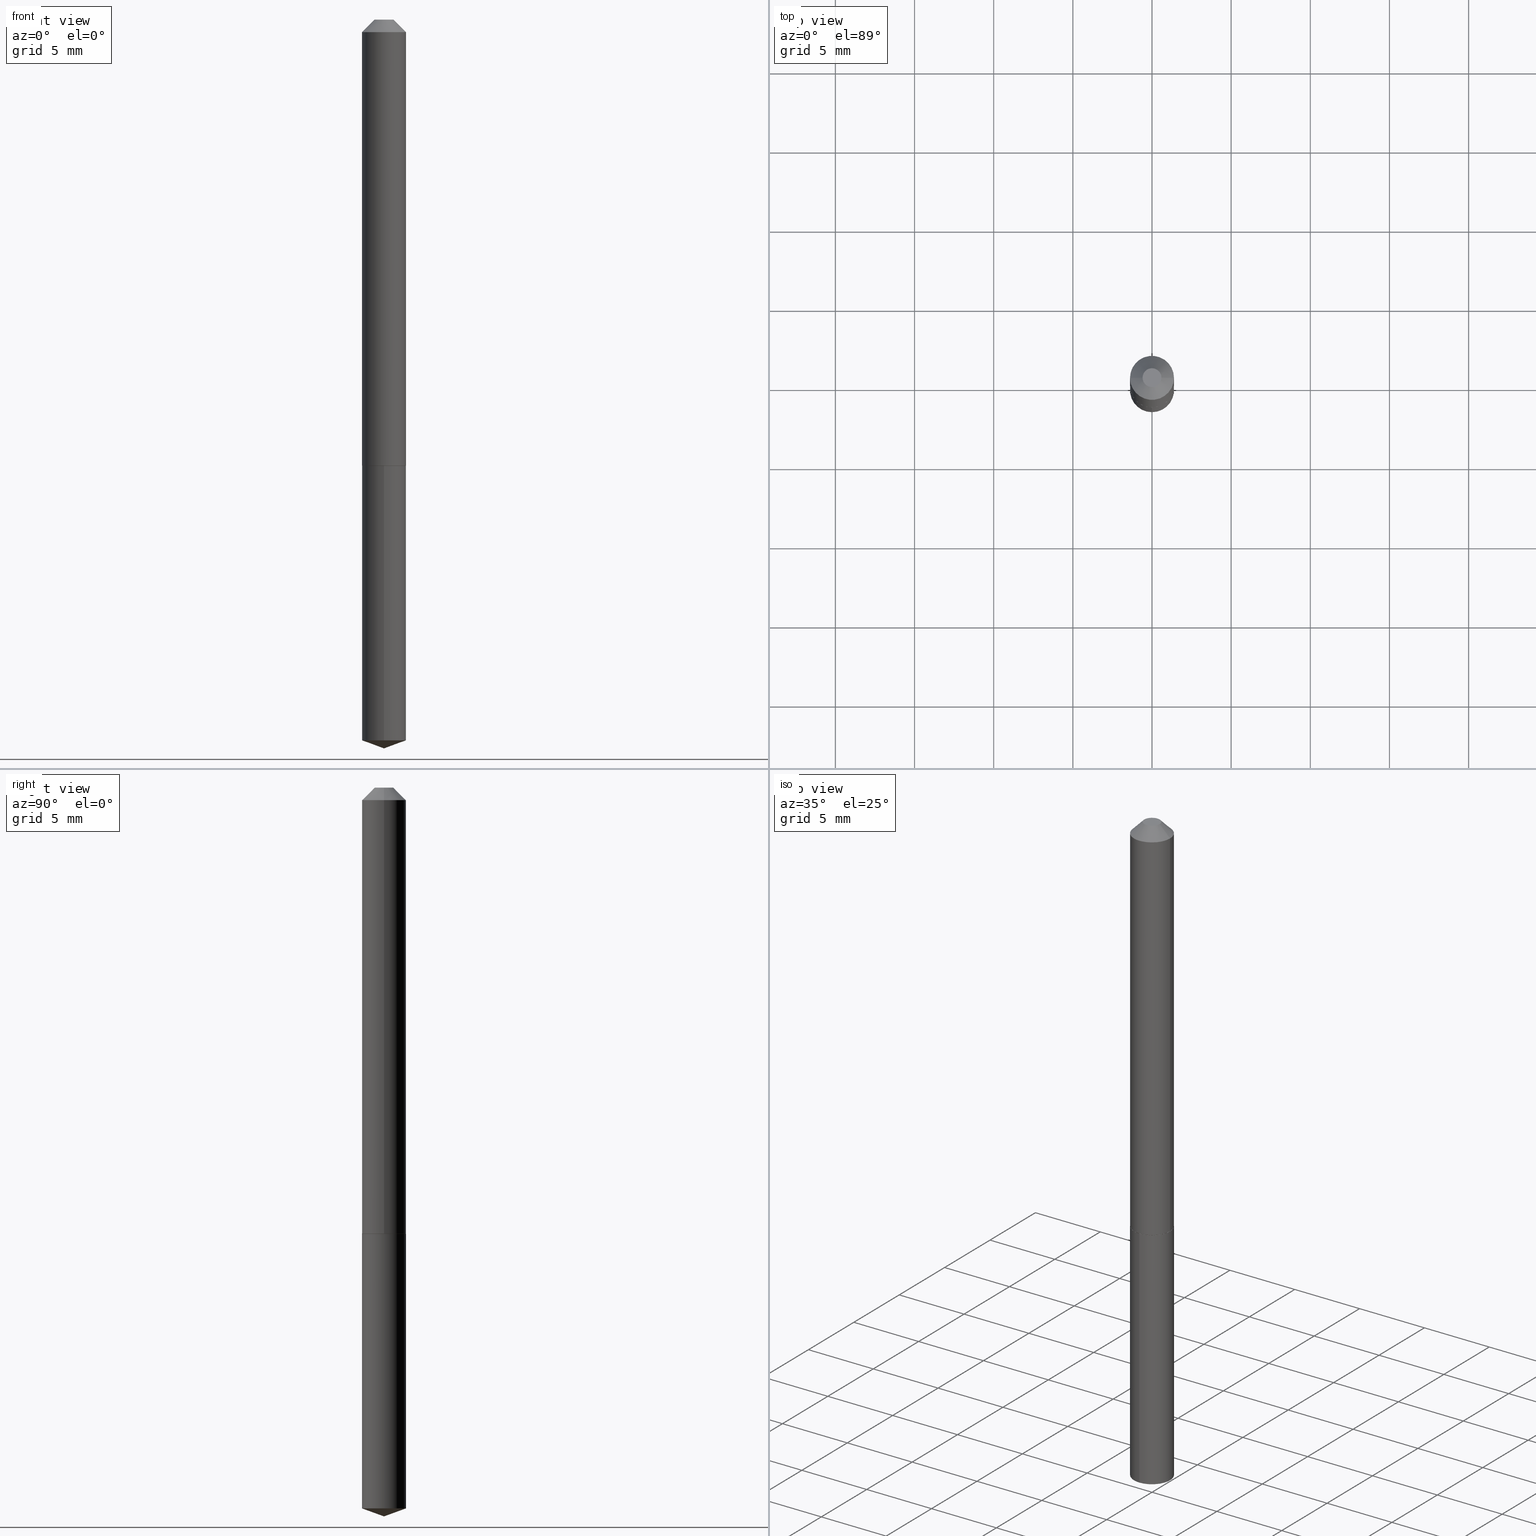
[diagram: canonical four-view strip — front | top / right | iso, engineering-drawing reading convention]
A machine part, canonical four-view strip (front | top / right | iso — engineering-drawing reading convention). The complete STEP part file that produces these views, byte-faithful:
ISO-10303-21;
HEADER;
FILE_DESCRIPTION (( 'STEP AP203' ),
    '1' );
FILE_NAME ('56139.STEP',
    '2024-04-22T20:35:35',
    ( '' ),
    ( '' ),
    'SwSTEP 2.0',
    'SolidWorks 2023',
    '' );
FILE_SCHEMA (( 'CONFIG_CONTROL_DESIGN' ));
ENDSEC;

DATA;
#1 = APPROVAL_PERSON_ORGANIZATION ( #361, #282, #11 ) ;
#2 = ORIENTED_EDGE ( 'NONE', *, *, #380, .T. ) ;
#3 = ADVANCED_FACE ( 'NONE', ( #364 ), #13, .T. ) ;
#4 = DIRECTION ( 'NONE',  ( 1.000000000000000000, 0.000000000000000000, 0.000000000000000000 ) ) ;
#5 = APPLICATION_PROTOCOL_DEFINITION ( 'international standard', 'config_control_design', 1994, #215 ) ;
#6 = ORIENTED_EDGE ( 'NONE', *, *, #310, .F. ) ;
#7 = UNCERTAINTY_MEASURE_WITH_UNIT (LENGTH_MEASURE( 1.000000000000000082E-05 ), #276, 'distance_accuracy_value', 'NONE');
#8 = DATE_TIME_ROLE ( 'creation_date' ) ;
#9 = VERTEX_POINT ( 'NONE', #244 ) ;
#10 = EDGE_CURVE ( 'NONE', #53, #162, #381, .T. ) ;
#11 = APPROVAL_ROLE ( '' ) ;
#12 = DIRECTION ( 'NONE',  ( 1.000000000000000000, -6.982962677686269866E-15, 0.000000000000000000 ) ) ;
#13 = CONICAL_SURFACE ( 'NONE', #343, 0.05470000000000000556, 0.7853981633974450594 ) ;
#14 = PRODUCT ( '56139', '56139', '', ( #336 ) ) ;
#15 = DIRECTION ( 'NONE',  ( -2.445468806185136597E-29, 3.491481338843145583E-15, 1.000000000000000000 ) ) ;
#16 = CARTESIAN_POINT ( 'NONE',  ( 2.713003093581790888E-29, -3.873449397312585946E-15, -1.109400000000000164 ) ) ;
#17 = CC_DESIGN_DATE_AND_TIME_ASSIGNMENT ( #284, #19, ( #177 ) ) ;
#18 = EDGE_LOOP ( 'NONE', ( #322, #89, #185, #248 ) ) ;
#19 = DATE_TIME_ROLE ( 'classification_date' ) ;
#20 = CARTESIAN_POINT ( 'NONE',  ( 4.433028225724176768E-29, -6.327427758808334844E-15, -1.812500000000000222 ) ) ;
#21 = ORIENTED_EDGE ( 'NONE', *, *, #154, .F. ) ;
#22 = VECTOR ( 'NONE', #57, 39.37007874015748143 ) ;
#23 = CC_DESIGN_SECURITY_CLASSIFICATION ( #177, ( #286 ) ) ;
#24 = DIRECTION ( 'NONE',  ( 1.000000000000000000, -6.982962677686266711E-15, 4.876176775795936353E-29 ) ) ;
#25 = CARTESIAN_POINT ( 'NONE',  ( 2.711780359178698087E-29, -3.871703656643164443E-15, -1.108899999999999997 ) ) ;
#26 = ORIENTED_EDGE ( 'NONE', *, *, #359, .T. ) ;
#27 = CARTESIAN_POINT ( 'NONE',  ( 7.606645392260027928E-30, -6.669309327359751594E-15, -1.109400000000000164 ) ) ;
#28 = CONICAL_SURFACE ( 'NONE', #308, 0.05470000000000013046, 0.7853981633972689780 ) ;
#29 = CC_DESIGN_APPROVAL ( #372, ( #177 ) ) ;
#30 = FACE_OUTER_BOUND ( 'NONE', #318, .T. ) ;
#31 = DIRECTION ( 'NONE',  ( 1.000000000000000000, -6.982962677686269866E-15, 0.000000000000000000 ) ) ;
#32 = MANIFOLD_SOLID_BREP ( 'Body-Move/Copy2[1]', #285 ) ;
#33 = AXIS2_PLACEMENT_3D ( 'NONE', #52, #172, #294 ) ;
#34 = CARTESIAN_POINT ( 'NONE',  ( 7.642090019328602662E-31, -1.091087918388490267E-16, -0.03125000000000020817 ) ) ;
#35 = EDGE_LOOP ( 'NONE', ( #6, #222, #376 ) ) ;
#36 = PERSON_AND_ORGANIZATION ( #388, #300 ) ;
#37 = EDGE_LOOP ( 'NONE', ( #121, #288, #152, #115 ) ) ;
#38 = CALENDAR_DATE ( 2024, 22, 4 ) ;
#39 = DIRECTION ( 'NONE',  ( -6.982962677686265922E-15, -1.000000000000000000, 2.497118824190368439E-15 ) ) ;
#40 = DIRECTION ( 'NONE',  ( -0.7071067811864205632, 7.493145998869895043E-15, 0.7071067811866742492 ) ) ;
#41 = ORIENTED_EDGE ( 'NONE', *, *, #301, .F. ) ;
#42 = COORDINATED_UNIVERSAL_TIME_OFFSET ( 5, 0, .BEHIND. ) ;
#43 = CARTESIAN_POINT ( 'NONE',  ( 7.642090019328602662E-31, -1.091087918388490267E-16, -0.03125000000000020817 ) ) ;
#44 = VECTOR ( 'NONE', #303, 39.37007874015748143 ) ;
#45 = PLANE ( 'NONE',  #261 ) ;
#46 = CARTESIAN_POINT ( 'NONE',  ( 3.886668764608186723E-16, 0.05469999999999611284, -1.109400000000000164 ) ) ;
#47 = FACE_OUTER_BOUND ( 'NONE', #202, .T. ) ;
#48 = DIRECTION ( 'NONE',  ( -6.982962677686265922E-15, -1.000000000000000000, 2.497118824190368439E-15 ) ) ;
#49 = CARTESIAN_POINT ( 'NONE',  ( -1.167985862904637270E-47, 1.667574263899819573E-33, 4.776122516674677910E-19 ) ) ;
#50 = VERTEX_POINT ( 'NONE', #366 ) ;
#51 = AXIS2_PLACEMENT_3D ( 'NONE', #126, #306, #216 ) ;
#52 = CARTESIAN_POINT ( 'NONE',  ( 2.713003093581790888E-29, -3.873449397312586735E-15, -1.109400000000000164 ) ) ;
#53 = VERTEX_POINT ( 'NONE', #356 ) ;
#54 = AXIS2_PLACEMENT_3D ( 'NONE', #320, #384, #31 ) ;
#55 = DIRECTION ( 'NONE',  ( -2.445468806185136597E-29, 3.491481338843145583E-15, 1.000000000000000000 ) ) ;
#56 = DIRECTION ( 'NONE',  ( -6.982962677686265922E-15, -1.000000000000000000, 4.994237648380736877E-15 ) ) ;
#57 = DIRECTION ( 'NONE',  ( -2.445468806185136877E-29, 3.491481338843145188E-15, 1.000000000000000000 ) ) ;
#58 = CARTESIAN_POINT ( 'NONE',  ( 0.02344999999999999862, -3.226283551823471496E-16, 9.552245033366354078E-19 ) ) ;
#59 = CONICAL_SURFACE ( 'NONE', #88, 108.1684023407339197, 1.221730476396033049 ) ;
#60 = ORIENTED_EDGE ( 'NONE', *, *, #72, .T. ) ;
#61 = ORIENTED_EDGE ( 'NONE', *, *, #133, .T. ) ;
#62 = PERSON_AND_ORGANIZATION ( #388, #300 ) ;
#63 = DIRECTION ( 'NONE',  ( -1.000000000000000000, 6.982962677686266711E-15, 0.000000000000000000 ) ) ;
#64 = EDGE_CURVE ( 'NONE', #337, #162, #220, .T. ) ;
#65 = APPROVAL_STATUS ( 'not_yet_approved' ) ;
#66 = CARTESIAN_POINT ( 'NONE',  ( -0.05420000000000013696, -3.485686007356499471E-15, -1.109400000000000164 ) ) ;
#67 = DIRECTION ( 'NONE',  ( -2.445468806185136597E-29, 3.491481338843145583E-15, 1.000000000000000000 ) ) ;
#68 = ORIENTED_EDGE ( 'NONE', *, *, #359, .F. ) ;
#69 = SHAPE_DEFINITION_REPRESENTATION ( #344, #207 ) ;
#70 = ORIENTED_EDGE ( 'NONE', *, *, #310, .T. ) ;
#71 = PERSON_AND_ORGANIZATION ( #388, #300 ) ;
#72 = EDGE_CURVE ( 'NONE', #390, #362, #357, .T. ) ;
#73 = AXIS2_PLACEMENT_3D ( 'NONE', #95, #360, #12 ) ;
#74 = DIRECTION ( 'NONE',  ( 6.982962677686265922E-15, 1.000000000000000000, -3.490994625549426148E-15 ) ) ;
#75 = CARTESIAN_POINT ( 'NONE',  ( 4.432274121998487343E-29, -6.328507678264440123E-15, -1.812500000000000222 ) ) ;
#76 = CARTESIAN_POINT ( 'NONE',  ( 4.383957148700584574E-29, -6.258464906733312239E-15, -1.792590828185639085 ) ) ;
#77 = CARTESIAN_POINT ( 'NONE',  ( -3.819680584693948069E-16, -0.05470000000000622975, -1.792590828185638641 ) ) ;
#78 = EDGE_LOOP ( 'NONE', ( #374, #211, #198, #189 ) ) ;
#79 = CC_DESIGN_PERSON_AND_ORGANIZATION_ASSIGNMENT ( #71, #96, ( #177 ) ) ;
#80 = CARTESIAN_POINT ( 'NONE',  ( 2.713003093581790888E-29, -3.873449397312585946E-15, -1.109400000000000164 ) ) ;
#81 = AXIS2_PLACEMENT_3D ( 'NONE', #168, #103, #348 ) ;
#82 = CARTESIAN_POINT ( 'NONE',  ( 2.711780359178698087E-29, -3.871703656643164443E-15, -1.108899999999999997 ) ) ;
#83 = DIRECTION ( 'NONE',  ( 1.000000000000000000, -6.982962677686266711E-15, 4.876176775795936353E-29 ) ) ;
#84 = CC_DESIGN_DATE_AND_TIME_ASSIGNMENT ( #156, #8, ( #153 ) ) ;
#85 = EDGE_CURVE ( 'NONE', #50, #346, #249, .T. ) ;
#86 = ORIENTED_EDGE ( 'NONE', *, *, #10, .T. ) ;
#87 = CARTESIAN_POINT ( 'NONE',  ( -0.02344999999999999862, 2.183048707111663922E-16, 9.552245033335997570E-19 ) ) ;
#88 = AXIS2_PLACEMENT_3D ( 'NONE', #265, #295, #140 ) ;
#89 = ORIENTED_EDGE ( 'NONE', *, *, #64, .T. ) ;
#90 = CALENDAR_DATE ( 2024, 22, 4 ) ;
#91 = LINE ( 'NONE', #128, #192 ) ;
#92 = EDGE_CURVE ( 'NONE', #94, #50, #297, .T. ) ;
#93 = DIRECTION ( 'NONE',  ( 0.7071067811864205632, -2.468850131080928224E-15, 0.7071067811866742492 ) ) ;
#94 = VERTEX_POINT ( 'NONE', #66 ) ;
#95 = CARTESIAN_POINT ( 'NONE',  ( 2.711780359178698087E-29, -3.871703656643164443E-15, -1.108899999999999997 ) ) ;
#96 = PERSON_AND_ORGANIZATION_ROLE ( 'classification_officer' ) ;
#97 = ORIENTED_EDGE ( 'NONE', *, *, #154, .T. ) ;
#98 = APPROVAL_ROLE ( '' ) ;
#99 = DIRECTION ( 'NONE',  ( 1.000000000000000000, -6.982962677686266711E-15, 0.000000000000000000 ) ) ;
#100 = FACE_OUTER_BOUND ( 'NONE', #37, .T. ) ;
#101 = EDGE_CURVE ( 'NONE', #50, #332, #91, .T. ) ;
#102 = ORIENTED_EDGE ( 'NONE', *, *, #206, .F. ) ;
#103 = DIRECTION ( 'NONE',  ( -2.445468806185136597E-29, 3.491481338843145583E-15, 1.000000000000000000 ) ) ;
#104 = CIRCLE ( 'NONE', #81, 0.05420000000000013696 ) ;
#105 = DIRECTION ( 'NONE',  ( -2.445808676261614440E-29, 3.490994625549426148E-15, 1.000000000000000000 ) ) ;
#106 = ORIENTED_EDGE ( 'NONE', *, *, #234, .F. ) ;
#107 = EDGE_CURVE ( 'NONE', #125, #275, #277, .T. ) ;
#108 = CYLINDRICAL_SURFACE ( 'NONE', #325, 0.05469999999999999862 ) ;
#109 = VECTOR ( 'NONE', #293, 39.37007874015748854 ) ;
#110 = CARTESIAN_POINT ( 'NONE',  ( 0.05470000000000000556, -4.843780323169518806E-16, -0.03125000000000020817 ) ) ;
#111 = VECTOR ( 'NONE', #40, 39.37007874015748854 ) ;
#112 = DIRECTION ( 'NONE',  ( 2.438088387897960049E-29, -3.491481338843145188E-15, -1.000000000000000000 ) ) ;
#113 = ADVANCED_FACE ( 'NONE', ( #47 ), #155, .T. ) ;
#114 = FACE_OUTER_BOUND ( 'NONE', #151, .T. ) ;
#115 = ORIENTED_EDGE ( 'NONE', *, *, #369, .F. ) ;
#116 = AXIS2_PLACEMENT_3D ( 'NONE', #34, #67, #181 ) ;
#117 = CARTESIAN_POINT ( 'NONE',  ( 0.000000000000000000, 0.000000000000000000, 0.000000000000000000 ) ) ;
#118 = CIRCLE ( 'NONE', #54, 0.05470000000000013046 ) ;
#119 = ORIENTED_EDGE ( 'NONE', *, *, #101, .T. ) ;
#120 = APPROVAL_STATUS ( 'not_yet_approved' ) ;
#121 = ORIENTED_EDGE ( 'NONE', *, *, #101, .F. ) ;
#122 = LINE ( 'NONE', #298, #345 ) ;
#123 = CARTESIAN_POINT ( 'NONE',  ( 7.642090019328602662E-31, -1.091087918388490267E-16, -0.03125000000000020817 ) ) ;
#124 = COORDINATED_UNIVERSAL_TIME_OFFSET ( 5, 0, .BEHIND. ) ;
#125 = VERTEX_POINT ( 'NONE', #20 ) ;
#126 = CARTESIAN_POINT ( 'NONE',  ( -2.335971725809274539E-47, 3.335148527799639146E-33, 9.552245033349355820E-19 ) ) ;
#127 = VECTOR ( 'NONE', #165, 39.37007874015748143 ) ;
#128 = CARTESIAN_POINT ( 'NONE',  ( -0.05470000000000006801, 3.886668764607752849E-16, -2.690657494369436511E-30 ) ) ;
#129 = EDGE_CURVE ( 'NONE', #362, #332, #257, .T. ) ;
#130 = PERSON_AND_ORGANIZATION_ROLE ( 'creator' ) ;
#131 = AXIS2_PLACEMENT_3D ( 'NONE', #27, #201, #351 ) ;
#132 = APPROVAL_DATE_TIME ( #190, #282 ) ;
#133 = EDGE_CURVE ( 'NONE', #9, #332, #371, .T. ) ;
#134 = DIRECTION ( 'NONE',  ( -0.7071067811865452413, 2.468850131082233000E-15, -0.7071067811865497932 ) ) ;
#135 = AXIS2_PLACEMENT_3D ( 'NONE', #169, #203, #389 ) ;
#136 = PERSON_AND_ORGANIZATION ( #388, #300 ) ;
#137 = LOCAL_TIME ( 16, 35, 35.00000000000000000, #158 ) ;
#138 = EDGE_LOOP ( 'NONE', ( #271, #68, #217, #350 ) ) ;
#139 = AXIS2_PLACEMENT_3D ( 'NONE', #354, #323, #24 ) ;
#140 = DIRECTION ( 'NONE',  ( -6.982962677686269077E-15, -1.000000000000000000, 3.475157955500705620E-15 ) ) ;
#141 = AXIS2_PLACEMENT_3D ( 'NONE', #242, #281, #39 ) ;
#142 = ADVANCED_FACE ( 'NONE', ( #378 ), #45, .F. ) ;
#143 = FACE_OUTER_BOUND ( 'NONE', #78, .T. ) ;
#144 = FACE_OUTER_BOUND ( 'NONE', #173, .T. ) ;
#145 = LOCAL_TIME ( 16, 35, 35.00000000000000000, #124 ) ;
#146 = FACE_OUTER_BOUND ( 'NONE', #204, .T. ) ;
#147 = ADVANCED_FACE ( 'NONE', ( #196 ), #315, .T. ) ;
#148 = CC_DESIGN_PERSON_AND_ORGANIZATION_ASSIGNMENT ( #36, #245, ( #14 ) ) ;
#149 = LINE ( 'NONE', #110, #314 ) ;
#150 = DIRECTION ( 'NONE',  ( -2.445808676261614440E-29, 3.490994625549426148E-15, 1.000000000000000000 ) ) ;
#151 = EDGE_LOOP ( 'NONE', ( #97, #229, #224, #183 ) ) ;
#152 = ORIENTED_EDGE ( 'NONE', *, *, #301, .T. ) ;
#153 = PRODUCT_DEFINITION ( 'UNKNOWN', '', #286, #171 ) ;
#154 = EDGE_CURVE ( 'NONE', #307, #94, #104, .T. ) ;
#155 = CONICAL_SURFACE ( 'NONE', #291, 0.05470000000000000556, 0.7853981633974450594 ) ;
#156 = DATE_AND_TIME ( #38, #385 ) ;
#157 = EDGE_LOOP ( 'NONE', ( #272, #70, #102 ) ) ;
#158 = COORDINATED_UNIVERSAL_TIME_OFFSET ( 5, 0, .BEHIND. ) ;
#159 = DIRECTION ( 'NONE',  ( -2.445468806185136877E-29, 3.491481338843145188E-15, 1.000000000000000000 ) ) ;
#160 = APPROVAL_PERSON_ORGANIZATION ( #136, #372, #98 ) ;
#161 = CC_DESIGN_PERSON_AND_ORGANIZATION_ASSIGNMENT ( #62, #184, ( #153 ) ) ;
#162 = VERTEX_POINT ( 'NONE', #46 ) ;
#163 = CONICAL_SURFACE ( 'NONE', #179, 0.05470000000000013046, 0.7853981633972689780 ) ;
#164 = DIRECTION ( 'NONE',  ( 2.445808676261613880E-29, -3.490994625549426148E-15, -1.000000000000000000 ) ) ;
#165 = DIRECTION ( 'NONE',  ( -6.561838499445207162E-15, -0.9396926207859079838, 0.3420201433256698231 ) ) ;
#166 = AXIS2_PLACEMENT_3D ( 'NONE', #117, #182, #4 ) ;
#167 = AXIS2_PLACEMENT_3D ( 'NONE', #43, #15, #99 ) ;
#168 = CARTESIAN_POINT ( 'NONE',  ( 2.713003093581790888E-29, -3.873449397312586735E-15, -1.109400000000000164 ) ) ;
#169 = CARTESIAN_POINT ( 'NONE',  ( 2.713003093581790888E-29, -3.873449397312585946E-15, -1.109400000000000164 ) ) ;
#170 = AXIS2_PLACEMENT_3D ( 'NONE', #76, #324, #56 ) ;
#171 = DESIGN_CONTEXT ( 'detailed design', #255, 'design' ) ;
#172 = DIRECTION ( 'NONE',  ( -2.445468806185136597E-29, 3.491481338843145583E-15, 1.000000000000000000 ) ) ;
#173 = EDGE_LOOP ( 'NONE', ( #341, #119, #292, #41 ) ) ;
#174 = LINE ( 'NONE', #178, #109 ) ;
#175 = ADVANCED_FACE ( 'NONE', ( #100 ), #227, .T. ) ;
#176 = CARTESIAN_POINT ( 'NONE',  ( -0.05470000000000000556, -1.601739347780230402E-15, -0.03125000000000020817 ) ) ;
#177 = SECURITY_CLASSIFICATION ( '', '', #191 ) ;
#178 = CARTESIAN_POINT ( 'NONE',  ( 4.433034838323703138E-29, -6.327427758808334844E-15, -1.812500000000000222 ) ) ;
#179 = AXIS2_PLACEMENT_3D ( 'NONE', #25, #55, #268 ) ;
#180 = CIRCLE ( 'NONE', #135, 0.05469999999999999862 ) ;
#181 = DIRECTION ( 'NONE',  ( 1.000000000000000000, -6.982962677686266711E-15, 0.000000000000000000 ) ) ;
#182 = DIRECTION ( 'NONE',  ( 0.000000000000000000, 0.000000000000000000, 1.000000000000000000 ) ) ;
#183 = ORIENTED_EDGE ( 'NONE', *, *, #353, .F. ) ;
#184 = PERSON_AND_ORGANIZATION_ROLE ( 'creator' ) ;
#185 = ORIENTED_EDGE ( 'NONE', *, *, #10, .F. ) ;
#186 = LENGTH_MEASURE_WITH_UNIT ( LENGTH_MEASURE( 0.02539999999999999897 ), #213 );
#187 = ORIENTED_EDGE ( 'NONE', *, *, #193, .F. ) ;
#188 =( NAMED_UNIT ( * ) SI_UNIT ( $, .STERADIAN. ) SOLID_ANGLE_UNIT ( ) );
#189 = ORIENTED_EDGE ( 'NONE', *, *, #85, .F. ) ;
#190 = DATE_AND_TIME ( #247, #145 ) ;
#191 = SECURITY_CLASSIFICATION_LEVEL ( 'unclassified' ) ;
#192 = VECTOR ( 'NONE', #159, 39.37007874015748143 ) ;
#193 = EDGE_CURVE ( 'NONE', #162, #53, #180, .T. ) ;
#194 = CARTESIAN_POINT ( 'NONE',  ( 0.000000000000000000, 0.000000000000000000, 0.000000000000000000 ) ) ;
#195 = CALENDAR_DATE ( 2024, 22, 4 ) ;
#196 = FACE_OUTER_BOUND ( 'NONE', #18, .T. ) ;
#197 = LOCAL_TIME ( 16, 35, 35.00000000000000000, #309 ) ;
#198 = ORIENTED_EDGE ( 'NONE', *, *, #353, .T. ) ;
#199 = ADVANCED_FACE ( 'NONE', ( #264 ), #59, .T. ) ;
#200 = DIMENSIONAL_EXPONENTS ( 1.000000000000000000, 0.000000000000000000, 0.000000000000000000, 0.000000000000000000, 0.000000000000000000, 0.000000000000000000, 0.000000000000000000 ) ;
#201 = DIRECTION ( 'NONE',  ( -2.438088387897960049E-29, 3.491481338843145188E-15, 1.000000000000000000 ) ) ;
#202 = EDGE_LOOP ( 'NONE', ( #299, #383, #61, #231 ) ) ;
#203 = DIRECTION ( 'NONE',  ( -2.445808676261614440E-29, 3.490994625549426148E-15, 1.000000000000000000 ) ) ;
#204 = EDGE_LOOP ( 'NONE', ( #21, #106 ) ) ;
#205 = CARTESIAN_POINT ( 'NONE',  ( 0.05420000000000013696, -4.251925974443182908E-15, -1.109400000000000164 ) ) ;
#206 = EDGE_CURVE ( 'NONE', #275, #337, #230, .T. ) ;
#207 = ADVANCED_BREP_SHAPE_REPRESENTATION ( '56139', ( #32, #290, #166 ), #218 ) ;
#208 = DIRECTION ( 'NONE',  ( 1.000000000000000000, -6.982962677686269866E-15, 0.000000000000000000 ) ) ;
#209 = FACE_OUTER_BOUND ( 'NONE', #355, .T. ) ;
#210 = CARTESIAN_POINT ( 'NONE',  ( 0.05470000000000013046, -4.253671715112603623E-15, -1.108899999999999997 ) ) ;
#211 = ORIENTED_EDGE ( 'NONE', *, *, #234, .T. ) ;
#212 = CLOSED_SHELL ( 'NONE', ( #113, #269, #321, #221, #274, #175, #3, #263 ) ) ;
#213 =( LENGTH_UNIT ( ) NAMED_UNIT ( * ) SI_UNIT ( $, .METRE. ) );
#214 = CARTESIAN_POINT ( 'NONE',  ( 3.886668764608018597E-16, 0.05469999999999612672, -1.109400000000000164 ) ) ;
#215 = APPLICATION_CONTEXT ( 'configuration controlled 3d designs of mechanical parts and assemblies' ) ;
#216 = DIRECTION ( 'NONE',  ( 1.000000000000000000, -6.982962677686266711E-15, 4.876421767504995250E-29 ) ) ;
#217 = ORIENTED_EDGE ( 'NONE', *, *, #129, .T. ) ;
#218 =( GEOMETRIC_REPRESENTATION_CONTEXT ( 3 ) GLOBAL_UNCERTAINTY_ASSIGNED_CONTEXT ( ( #7 ) ) GLOBAL_UNIT_ASSIGNED_CONTEXT ( ( #276, #270, #188 ) ) REPRESENTATION_CONTEXT ( 'NONE', 'WORKASPACE' ) );
#219 = APPLICATION_PROTOCOL_DEFINITION ( 'international standard', 'config_control_design', 1994, #255 ) ;
#220 = LINE ( 'NONE', #214, #44 ) ;
#221 = ADVANCED_FACE ( 'NONE', ( #146 ), #287, .F. ) ;
#222 = ORIENTED_EDGE ( 'NONE', *, *, #107, .T. ) ;
#223 = DATE_AND_TIME ( #340, #368 ) ;
#224 = ORIENTED_EDGE ( 'NONE', *, *, #283, .F. ) ;
#225 = CC_DESIGN_APPROVAL ( #282, ( #286 ) ) ;
#226 = CARTESIAN_POINT ( 'NONE',  ( -0.05470000000000000556, 2.728592666305898332E-16, -0.03125000000000020817 ) ) ;
#227 = CYLINDRICAL_SURFACE ( 'NONE', #267, 0.05470000000000006801 ) ;
#228 = VECTOR ( 'NONE', #93, 39.37007874015748854 ) ;
#229 = ORIENTED_EDGE ( 'NONE', *, *, #92, .T. ) ;
#230 = CIRCLE ( 'NONE', #338, 0.05469999999999999862 ) ;
#231 = ORIENTED_EDGE ( 'NONE', *, *, #129, .F. ) ;
#232 = PLANE ( 'NONE',  #238 ) ;
#233 = DIRECTION ( 'NONE',  ( -1.000000000000000000, 6.982962677686265922E-15, -4.876176775795935793E-29 ) ) ;
#234 = EDGE_CURVE ( 'NONE', #94, #307, #311, .T. ) ;
#235 = DIRECTION ( 'NONE',  ( -2.445808676261614440E-29, 3.490994625549426148E-15, 1.000000000000000000 ) ) ;
#236 = CYLINDRICAL_SURFACE ( 'NONE', #139, 0.05470000000000006801 ) ;
#237 = DIRECTION ( 'NONE',  ( -2.445468806185136597E-29, 3.491481338843145583E-15, 1.000000000000000000 ) ) ;
#238 = AXIS2_PLACEMENT_3D ( 'NONE', #49, #112, #233 ) ;
#239 = ORIENTED_EDGE ( 'NONE', *, *, #326, .T. ) ;
#240 = CIRCLE ( 'NONE', #116, 0.05470000000000000556 ) ;
#241 = ADVANCED_FACE ( 'NONE', ( #209 ), #108, .T. ) ;
#242 = CARTESIAN_POINT ( 'NONE',  ( 2.713003093581790888E-29, -3.873449397312585946E-15, -1.109400000000000164 ) ) ;
#243 = CARTESIAN_POINT ( 'NONE',  ( 3.886668764608184751E-16, 0.05469999999999372586, -1.792590828185639307 ) ) ;
#244 = CARTESIAN_POINT ( 'NONE',  ( 0.05470000000000000556, -4.910768503082878866E-16, -0.03125000000000020817 ) ) ;
#245 = PERSON_AND_ORGANIZATION_ROLE ( 'design_owner' ) ;
#246 = DIRECTION ( 'NONE',  ( 2.445468806185136597E-29, -3.491481338843145583E-15, -1.000000000000000000 ) ) ;
#247 = CALENDAR_DATE ( 2024, 22, 4 ) ;
#248 = ORIENTED_EDGE ( 'NONE', *, *, #380, .F. ) ;
#249 = CIRCLE ( 'NONE', #73, 0.05470000000000013046 ) ;
#250 = PERSON_AND_ORGANIZATION_ROLE ( 'design_supplier' ) ;
#251 = DIRECTION ( 'NONE',  ( 1.000000000000000000, -6.982962677686266711E-15, 4.876421767504995250E-29 ) ) ;
#252 = PERSON_AND_ORGANIZATION ( #388, #300 ) ;
#253 = CC_DESIGN_PERSON_AND_ORGANIZATION_ASSIGNMENT ( #375, #250, ( #286 ) ) ;
#254 = ADVANCED_FACE ( 'NONE', ( #266 ), #278, .T. ) ;
#255 = APPLICATION_CONTEXT ( 'configuration controlled 3d designs of mechanical parts and assemblies' ) ;
#256 = DIRECTION ( 'NONE',  ( -2.445808676261614440E-29, 3.490994625549426148E-15, 1.000000000000000000 ) ) ;
#257 = LINE ( 'NONE', #226, #335 ) ;
#258 = DIRECTION ( 'NONE',  ( -1.000000000000000000, 6.982962677686266711E-15, 0.000000000000000000 ) ) ;
#259 = ORIENTED_EDGE ( 'NONE', *, *, #64, .F. ) ;
#260 = CARTESIAN_POINT ( 'NONE',  ( 4.383957148700584574E-29, -6.258464906733312239E-15, -1.792590828185639085 ) ) ;
#261 = AXIS2_PLACEMENT_3D ( 'NONE', #373, #164, #74 ) ;
#262 = ORIENTED_EDGE ( 'NONE', *, *, #193, .T. ) ;
#263 = ADVANCED_FACE ( 'NONE', ( #30 ), #232, .F. ) ;
#264 = FACE_OUTER_BOUND ( 'NONE', #35, .T. ) ;
#265 = CARTESIAN_POINT ( 'NONE',  ( -9.185902899391876517E-28, 1.311127655708111020E-13, 37.55757874015748143 ) ) ;
#266 = FACE_OUTER_BOUND ( 'NONE', #157, .T. ) ;
#267 = AXIS2_PLACEMENT_3D ( 'NONE', #194, #312, #83 ) ;
#268 = DIRECTION ( 'NONE',  ( 1.000000000000000000, -6.982962677686269866E-15, 0.000000000000000000 ) ) ;
#269 = ADVANCED_FACE ( 'NONE', ( #144 ), #236, .T. ) ;
#270 =( NAMED_UNIT ( * ) PLANE_ANGLE_UNIT ( ) SI_UNIT ( $, .RADIAN. ) );
#271 = ORIENTED_EDGE ( 'NONE', *, *, #313, .F. ) ;
#272 = ORIENTED_EDGE ( 'NONE', *, *, #107, .F. ) ;
#273 = AXIS2_PLACEMENT_3D ( 'NONE', #330, #305, #251 ) ;
#274 = ADVANCED_FACE ( 'NONE', ( #143 ), #163, .T. ) ;
#275 = VERTEX_POINT ( 'NONE', #77 ) ;
#276 =( CONVERSION_BASED_UNIT ( 'INCH', #186 ) LENGTH_UNIT ( ) NAMED_UNIT ( #200 ) );
#277 = LINE ( 'NONE', #75, #127 ) ;
#278 = CONICAL_SURFACE ( 'NONE', #279, 108.1684023407339197, 1.221730476396033049 ) ;
#279 = AXIS2_PLACEMENT_3D ( 'NONE', #317, #387, #349 ) ;
#280 = APPROVAL_DATE_TIME ( #331, #319 ) ;
#281 = DIRECTION ( 'NONE',  ( -2.445808676261614440E-29, 3.490994625549426148E-15, 1.000000000000000000 ) ) ;
#282 = APPROVAL ( #65, 'UNSPECIFIED' ) ;
#283 = EDGE_CURVE ( 'NONE', #346, #50, #118, .T. ) ;
#284 = DATE_AND_TIME ( #195, #197 ) ;
#285 = CLOSED_SHELL ( 'NONE', ( #147, #254, #199, #241, #142 ) ) ;
#286 = PRODUCT_DEFINITION_FORMATION_WITH_SPECIFIED_SOURCE ( 'ANY', '', #14, .NOT_KNOWN. ) ;
#287 = PLANE ( 'NONE',  #131 ) ;
#288 = ORIENTED_EDGE ( 'NONE', *, *, #85, .T. ) ;
#289 = DIRECTION ( 'NONE',  ( -6.982962677686265922E-15, -1.000000000000000000, 2.497118824190368439E-15 ) ) ;
#290 = MANIFOLD_SOLID_BREP ( 'Body-Move/Copy2[2]', #212 ) ;
#291 = AXIS2_PLACEMENT_3D ( 'NONE', #370, #316, #258 ) ;
#292 = ORIENTED_EDGE ( 'NONE', *, *, #133, .F. ) ;
#293 = DIRECTION ( 'NONE',  ( 6.676917655467972073E-15, 0.9396926207859103153, 0.3420201433256632173 ) ) ;
#294 = DIRECTION ( 'NONE',  ( 1.000000000000000000, -6.982962677686268288E-15, 0.000000000000000000 ) ) ;
#295 = DIRECTION ( 'NONE',  ( -2.445808676261614440E-29, 3.490994625549426148E-15, 1.000000000000000000 ) ) ;
#296 = LINE ( 'NONE', #210, #228 ) ;
#297 = LINE ( 'NONE', #334, #111 ) ;
#298 = CARTESIAN_POINT ( 'NONE',  ( -3.819680584694116195E-16, -0.05470000000000387747, -1.109399999999999942 ) ) ;
#299 = ORIENTED_EDGE ( 'NONE', *, *, #72, .F. ) ;
#300 = ORGANIZATION ( 'UNSPECIFIED', 'UNSPECIFIED', '' ) ;
#301 = EDGE_CURVE ( 'NONE', #346, #9, #327, .T. ) ;
#302 = COORDINATED_UNIVERSAL_TIME_OFFSET ( 5, 0, .BEHIND. ) ;
#303 = DIRECTION ( 'NONE',  ( -2.445808676261614440E-29, 3.490994625549426148E-15, 1.000000000000000000 ) ) ;
#304 = PRODUCT_RELATED_PRODUCT_CATEGORY ( 'detail', '', ( #14 ) ) ;
#305 = DIRECTION ( 'NONE',  ( -2.445468806185136597E-29, 3.491481338843145583E-15, 1.000000000000000000 ) ) ;
#306 = DIRECTION ( 'NONE',  ( -2.445468806185136597E-29, 3.491481338843145583E-15, 1.000000000000000000 ) ) ;
#307 = VERTEX_POINT ( 'NONE', #205 ) ;
#308 = AXIS2_PLACEMENT_3D ( 'NONE', #82, #237, #208 ) ;
#309 = COORDINATED_UNIVERSAL_TIME_OFFSET ( 5, 0, .BEHIND. ) ;
#310 = EDGE_CURVE ( 'NONE', #125, #337, #174, .T. ) ;
#311 = CIRCLE ( 'NONE', #33, 0.05420000000000013696 ) ;
#312 = DIRECTION ( 'NONE',  ( -2.445468806185136597E-29, 3.491481338843145583E-15, 1.000000000000000000 ) ) ;
#313 = EDGE_CURVE ( 'NONE', #390, #9, #149, .T. ) ;
#314 = VECTOR ( 'NONE', #352, 39.37007874015748143 ) ;
#315 = CYLINDRICAL_SURFACE ( 'NONE', #347, 0.05469999999999999862 ) ;
#316 = DIRECTION ( 'NONE',  ( 2.445468806185136597E-29, -3.491481338843145583E-15, -1.000000000000000000 ) ) ;
#317 = CARTESIAN_POINT ( 'NONE',  ( -9.185902899391876517E-28, 1.311127655708111020E-13, 37.55757874015748143 ) ) ;
#318 = EDGE_LOOP ( 'NONE', ( #26, #60 ) ) ;
#319 = APPROVAL ( #120, 'UNSPECIFIED' ) ;
#320 = CARTESIAN_POINT ( 'NONE',  ( 2.711780359178698087E-29, -3.871703656643164443E-15, -1.108899999999999997 ) ) ;
#321 = ADVANCED_FACE ( 'NONE', ( #114 ), #28, .T. ) ;
#322 = ORIENTED_EDGE ( 'NONE', *, *, #206, .T. ) ;
#323 = DIRECTION ( 'NONE',  ( -2.445468806185136597E-29, 3.491481338843145583E-15, 1.000000000000000000 ) ) ;
#324 = DIRECTION ( 'NONE',  ( -2.445808676261614440E-29, 3.490994625549426148E-15, 1.000000000000000000 ) ) ;
#325 = AXIS2_PLACEMENT_3D ( 'NONE', #80, #105, #289 ) ;
#326 = EDGE_CURVE ( 'NONE', #337, #275, #333, .T. ) ;
#327 = LINE ( 'NONE', #386, #22 ) ;
#328 = APPROVAL_PERSON_ORGANIZATION ( #363, #319, #358 ) ;
#329 = CARTESIAN_POINT ( 'NONE',  ( 0.05470000000000013046, -4.253671715112603623E-15, -1.108899999999999997 ) ) ;
#330 = CARTESIAN_POINT ( 'NONE',  ( -2.335971725809274539E-47, 3.335148527799639146E-33, 9.552245033349355820E-19 ) ) ;
#331 = DATE_AND_TIME ( #90, #137 ) ;
#332 = VERTEX_POINT ( 'NONE', #176 ) ;
#333 = CIRCLE ( 'NONE', #170, 0.05469999999999999862 ) ;
#334 = CARTESIAN_POINT ( 'NONE',  ( -0.05470000000000013046, -3.483036780182388665E-15, -1.108899999999999997 ) ) ;
#335 = VECTOR ( 'NONE', #134, 39.37007874015748143 ) ;
#336 = MECHANICAL_CONTEXT ( 'NONE', #215, 'mechanical' ) ;
#337 = VERTEX_POINT ( 'NONE', #243 ) ;
#338 = AXIS2_PLACEMENT_3D ( 'NONE', #260, #235, #382 ) ;
#339 = CC_DESIGN_PERSON_AND_ORGANIZATION_ASSIGNMENT ( #252, #130, ( #286 ) ) ;
#340 = CALENDAR_DATE ( 2024, 22, 4 ) ;
#341 = ORIENTED_EDGE ( 'NONE', *, *, #283, .T. ) ;
#342 = CC_DESIGN_APPROVAL ( #319, ( #153 ) ) ;
#343 = AXIS2_PLACEMENT_3D ( 'NONE', #123, #246, #63 ) ;
#344 = PRODUCT_DEFINITION_SHAPE ( 'NONE', 'NONE',  #153 ) ;
#345 = VECTOR ( 'NONE', #150, 39.37007874015748143 ) ;
#346 = VERTEX_POINT ( 'NONE', #329 ) ;
#347 = AXIS2_PLACEMENT_3D ( 'NONE', #16, #256, #48 ) ;
#348 = DIRECTION ( 'NONE',  ( 1.000000000000000000, -6.982962677686268288E-15, 0.000000000000000000 ) ) ;
#349 = DIRECTION ( 'NONE',  ( -6.982962677686269077E-15, -1.000000000000000000, 3.475157955500705620E-15 ) ) ;
#350 = ORIENTED_EDGE ( 'NONE', *, *, #369, .T. ) ;
#351 = DIRECTION ( 'NONE',  ( 1.000000000000000000, -6.982962677686265922E-15, 4.876176775795935793E-29 ) ) ;
#352 = DIRECTION ( 'NONE',  ( 0.7071067811865452413, -7.319954787623248157E-15, -0.7071067811865497932 ) ) ;
#353 = EDGE_CURVE ( 'NONE', #307, #346, #296, .T. ) ;
#354 = CARTESIAN_POINT ( 'NONE',  ( 0.000000000000000000, 0.000000000000000000, 0.000000000000000000 ) ) ;
#355 = EDGE_LOOP ( 'NONE', ( #259, #239, #2, #187 ) ) ;
#356 = CARTESIAN_POINT ( 'NONE',  ( -3.819680584694116195E-16, -0.05470000000000387747, -1.109399999999999942 ) ) ;
#357 = CIRCLE ( 'NONE', #273, 0.02344999999999999862 ) ;
#358 = APPROVAL_ROLE ( '' ) ;
#359 = EDGE_CURVE ( 'NONE', #362, #390, #377, .T. ) ;
#360 = DIRECTION ( 'NONE',  ( -2.445468806185136597E-29, 3.491481338843145583E-15, 1.000000000000000000 ) ) ;
#361 = PERSON_AND_ORGANIZATION ( #388, #300 ) ;
#362 = VERTEX_POINT ( 'NONE', #87 ) ;
#363 = PERSON_AND_ORGANIZATION ( #388, #300 ) ;
#364 = FACE_OUTER_BOUND ( 'NONE', #138, .T. ) ;
#365 = APPROVAL_DATE_TIME ( #223, #372 ) ;
#366 = CARTESIAN_POINT ( 'NONE',  ( -0.05470000000000013046, -3.483036780182388665E-15, -1.108899999999999997 ) ) ;
#367 = APPROVAL_STATUS ( 'not_yet_approved' ) ;
#368 = LOCAL_TIME ( 16, 35, 35.00000000000000000, #42 ) ;
#369 = EDGE_CURVE ( 'NONE', #332, #9, #240, .T. ) ;
#370 = CARTESIAN_POINT ( 'NONE',  ( 7.642090019328602662E-31, -1.091087918388490267E-16, -0.03125000000000020817 ) ) ;
#371 = CIRCLE ( 'NONE', #167, 0.05470000000000000556 ) ;
#372 = APPROVAL ( #367, 'UNSPECIFIED' ) ;
#373 = CARTESIAN_POINT ( 'NONE',  ( 2.713003093581790888E-29, -3.873449397312585946E-15, -1.109400000000000164 ) ) ;
#374 = ORIENTED_EDGE ( 'NONE', *, *, #92, .F. ) ;
#375 = PERSON_AND_ORGANIZATION ( #388, #300 ) ;
#376 = ORIENTED_EDGE ( 'NONE', *, *, #326, .F. ) ;
#377 = CIRCLE ( 'NONE', #51, 0.02344999999999999862 ) ;
#378 = FACE_OUTER_BOUND ( 'NONE', #379, .T. ) ;
#379 = EDGE_LOOP ( 'NONE', ( #86, #262 ) ) ;
#380 = EDGE_CURVE ( 'NONE', #275, #53, #122, .T. ) ;
#381 = CIRCLE ( 'NONE', #141, 0.05469999999999999862 ) ;
#382 = DIRECTION ( 'NONE',  ( -6.982962677686265922E-15, -1.000000000000000000, 4.994237648380736877E-15 ) ) ;
#383 = ORIENTED_EDGE ( 'NONE', *, *, #313, .T. ) ;
#384 = DIRECTION ( 'NONE',  ( -2.445468806185136597E-29, 3.491481338843145583E-15, 1.000000000000000000 ) ) ;
#385 = LOCAL_TIME ( 16, 35, 35.00000000000000000, #302 ) ;
#386 = CARTESIAN_POINT ( 'NONE',  ( 0.05470000000000006801, -3.819680584694392790E-16, 2.667268696360380458E-30 ) ) ;
#387 = DIRECTION ( 'NONE',  ( -2.445808676261614440E-29, 3.490994625549426148E-15, 1.000000000000000000 ) ) ;
#388 = PERSON ( 'UNSPECIFIED', 'UNSPECIFIED', 'UNSPECIFIED', ('UNSPECIFIED'), ('UNSPECIFIED'), ('UNSPECIFIED') ) ;
#389 = DIRECTION ( 'NONE',  ( -6.982962677686265922E-15, -1.000000000000000000, 2.497118824190368439E-15 ) ) ;
#390 = VERTEX_POINT ( 'NONE', #58 ) ;
ENDSEC;
END-ISO-10303-21;
